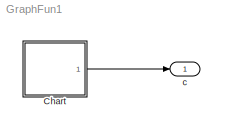
MODEL GraphFun1
KIND model
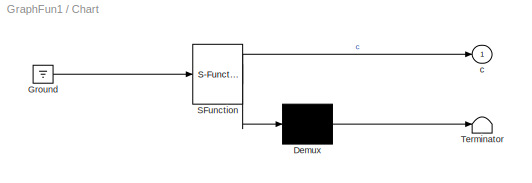
BLOCK [SubSystem] Chart
  MaskDescription = Stateflow diagram
  MaskDisplay = plot(sf('Private','sfblk','xIcon'),sf('Private','sfblk','yIcon'));text(0.5,0,sf('Private', 'sfblk', 'tIcon'),'HorizontalAl','Center','VerticalAl','Bottom');
  MaskIconFrame = off
  MaskIconOpaque = off
  MaskIconRotate = none
  MaskIconUnits = autoscale
  MaskSelfModifiable = on
  MaskType = Stateflow
  MinAlgLoopOccurrences = off
  Ports = [0, 1]
  RTWSystemCode = Auto
  TreatAsAtomicUnit = off
BLOCK [Demux] Chart/ Demux 
  Outputs = 1
  Ports = [1, 1]
BLOCK [Ground] Chart/ Ground 
BLOCK [S-Function] Chart/ SFunction 
  FunctionName = sf_sfun
  PortCounts = [1 2]
  Ports = [1, 2]
  Tag = Stateflow S-Function GraphFun1 1
BLOCK [Terminator] Chart/ Terminator 
BLOCK [Outport] Chart/c
  BusOutputAsStruct = off
  IconDisplay = Port number
BLOCK [Outport] c
  BusOutputAsStruct = off
  IconDisplay = Port number
LINE Chart/ Demux :1 -> Chart/ Terminator :1
LINE Chart/ Ground :1 -> Chart/ SFunction :1
LINE Chart/ SFunction :1 -> Chart/ Demux :1
LINE Chart/ SFunction :2 -> Chart/c:1
LINE Chart:1 -> c:1
CHART Chart states=3 transitions=4
  STATE_LABEL 'A/\\nen:a=3,b=4'
  STATE_LABEL 'B/\\nen:a=5,b=12'
  STATE_LABEL 'z=f(x,y)'
